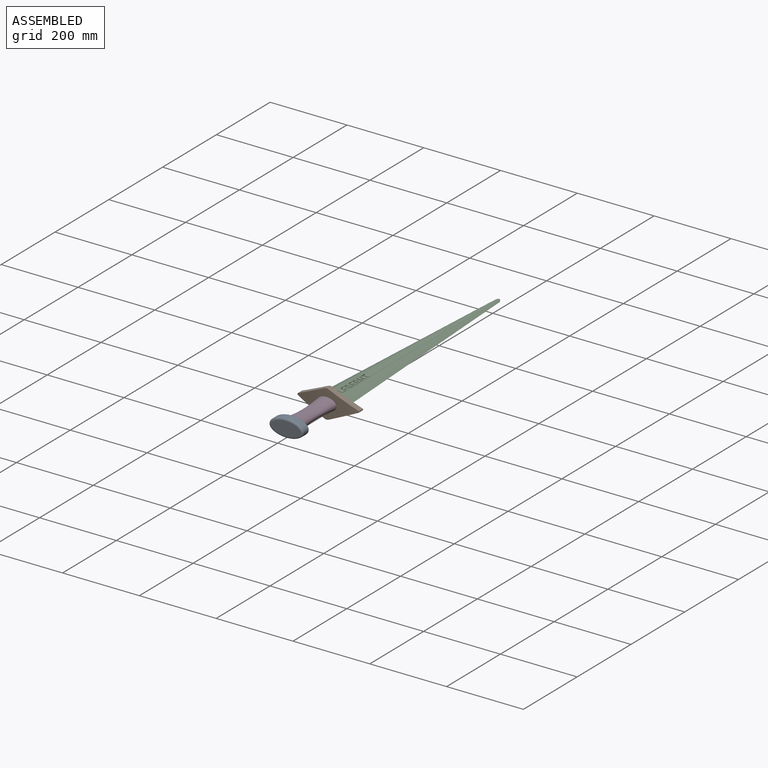
[diagram: assembled view]
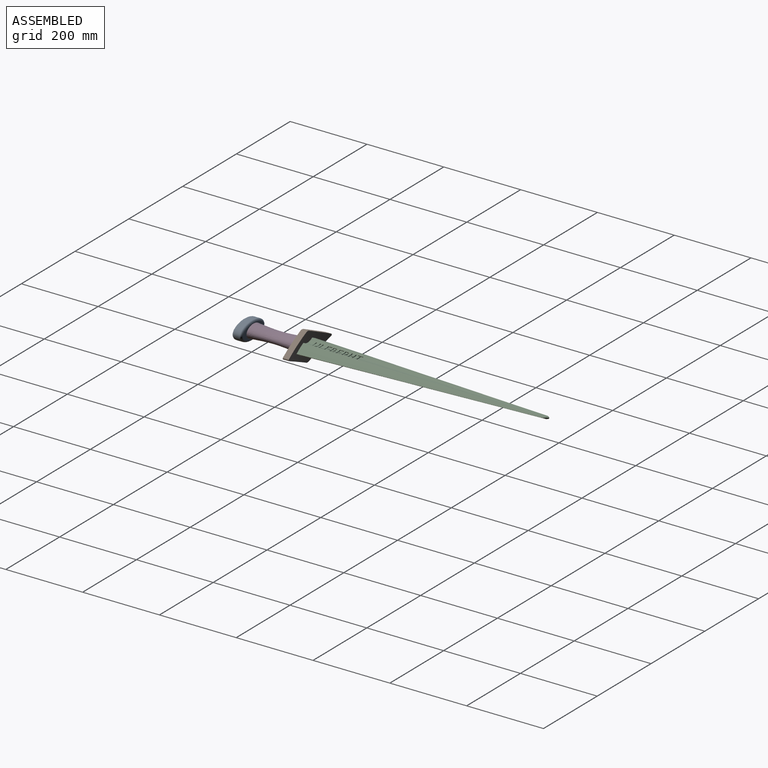
[diagram: assembled view, second angle]
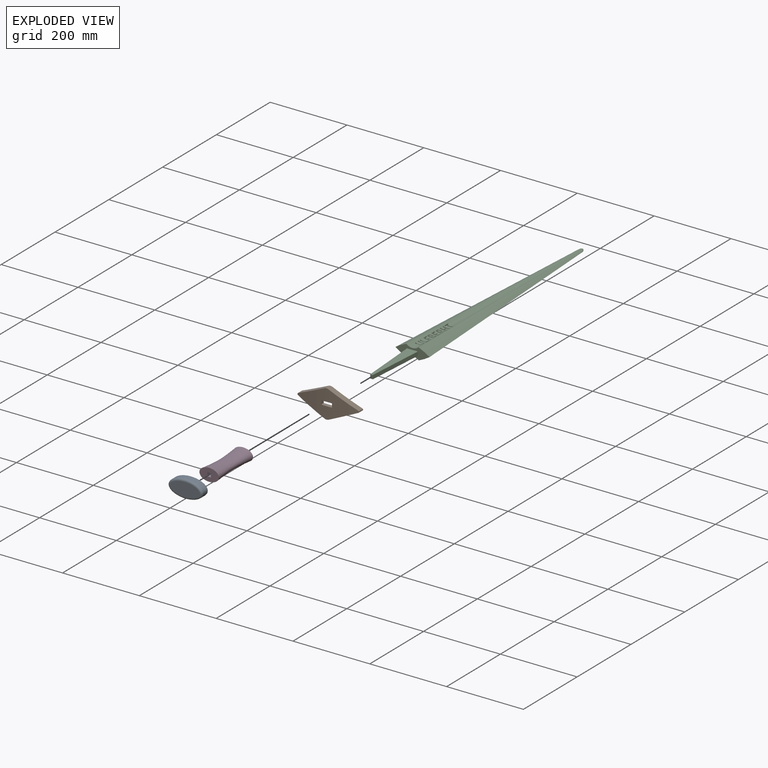
[diagram: exploded view]
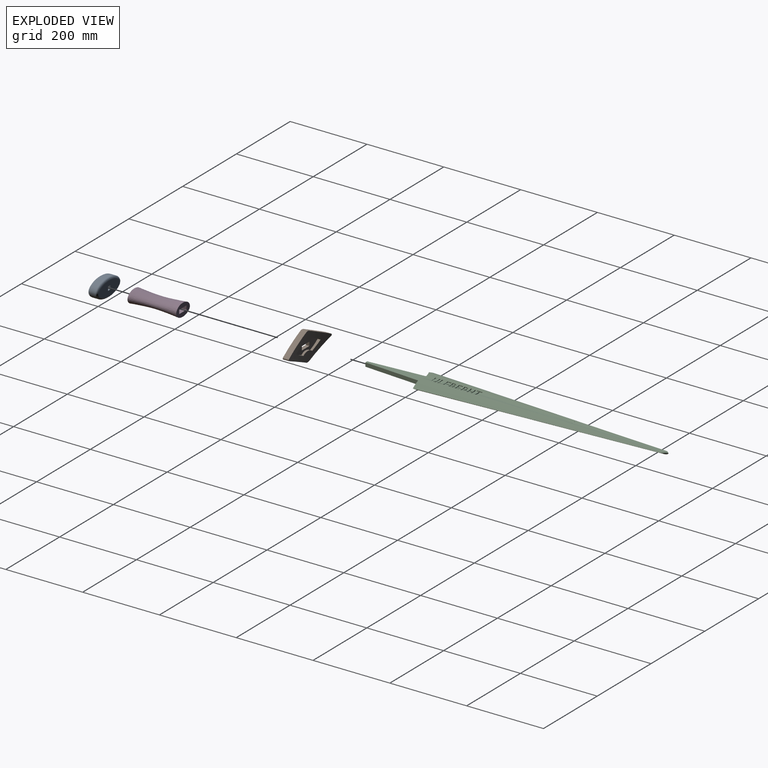
[diagram: exploded view, second angle]
ASSEMBLY  parts=4 mates=3
PART A: 10 faces, bbox 88.9x45.7x25.4 mm
  f0: plane 78.74x35.57mm, normal (0,0,1), area 2076.8mm2, adj f3,f5,f6,f7,f9
  f1: extruded ~88.49x45.51mm, area 3306.1mm2, adj f8,f9
  f2: plane 78.74x35.57mm, normal (0,0,-1), area 2170mm2, adj f8
  f3: plane 15.93x10.36mm, normal (1,0,0.07), area 165.4mm2, adj f0,f4,f6,f7
  f4: plane 10.36x6.76mm, normal (0,0,1), area 70.1mm2, adj f3,f5,f6,f7
  f5: plane 15.93x10.36mm, normal (-1,0,0.07), area 165.4mm2, adj f0,f4,f6,f7
  f6: plane 15.93x9mm, normal (0,-1,0), area 125.6mm2, adj f0,f3,f4,f5
  f7: plane 15.93x9mm, normal (0,1,0), area 125.6mm2, adj f0,f3,f4,f5
  f8: bspline ~88.9x45.73mm, area 1638.3mm2, adj f1,f2
  f9: bspline ~88.9x45.73mm, area 1638.3mm2, adj f0,f1
PART B: 21 faces, bbox 160.1x73.7x21.8 mm
  f0: plane 89.59x31.4mm, normal (0,0,1), area 1432.4mm2, adj f5,f6,f7,f11,f12,f13,f15,f16
  f1: cylinder r=508mm len=160.14mm, axis (0,-1,0), area 6092.1mm2, adj f2,f3,f4,f8,f9,f10,f15,f16
  f2: plane 73.24x33.27mm, normal (-0.41,-0.91,0), area 1231.4mm2, adj f1,f3,f14,f19
  f3: cylinder r=12.7mm len=15.27mm, axis (0,0,-1), area 165mm2, adj f1,f2,f4,f14
  f4: plane 73.24x33.27mm, normal (0.41,-0.91,0), area 1231.4mm2, adj f1,f3,f14,f20
  f5: cylinder r=157.48mm len=28.89mm, axis (0,0,1), area 214.6mm2, adj f0,f6,f12,f14
  f6: cylinder r=25.4mm len=31.82mm, axis (0,0,1), area 192.6mm2, adj f0,f5,f7,f14
  f7: cylinder r=157.48mm len=28.89mm, axis (0,0,1), area 214.6mm2, adj f0,f6,f13,f14
  f8: plane 73.24x33.27mm, normal (0.41,0.91,0), area 1231.4mm2, adj f1,f9,f14,f20
  f9: cylinder r=12.7mm len=15.27mm, axis (0,0,-1), area 165mm2, adj f1,f8,f10,f14
  f10: plane 73.24x33.27mm, normal (-0.41,0.91,0), area 1231.4mm2, adj f1,f9,f14,f19
  f11: cylinder r=25.4mm len=32.14mm, axis (0,0,1), area 194.9mm2, adj f0,f12,f13,f14
  f12: cylinder r=157.48mm len=28.81mm, axis (0,0,1), area 215.3mm2, adj f0,f5,f11,f14
  f13: cylinder r=157.48mm len=28.65mm, axis (0,0,1), area 213.1mm2, adj f0,f7,f11,f14
  f14: cylinder r=492.76mm len=160.14mm, axis (0,-1,0), area 4659.1mm2, adj f2,f3,f4,f5,f6,f7,f8,f9
  f15: plane 28.25x9.73mm, normal (0,-1,0), area 273mm2, adj f0,f1,f16,f18
  f16: plane 10.26x9.54mm, normal (1,0,0), area 97.8mm2, adj f0,f1,f15,f17
  f17: plane 28.25x9.73mm, normal (0,1,0), area 273mm2, adj f0,f1,f16,f18
  f18: plane 10.26x9.54mm, normal (-1,0,0), area 97.8mm2, adj f0,f1,f15,f17
  f19: cylinder r=2.69mm len=15.69mm, axis (0,0,-1), area 94.9mm2, adj f1,f2,f10,f14
  f20: cylinder r=2.69mm len=15.69mm, axis (0,0,-1), area 94.9mm2, adj f1,f4,f8,f14
PART C: 347 faces, bbox 89x787.1x30.6 mm
  f0: bspline ~632.51x32.38mm, area 12630mm2, adj f3,f4,f5,f179,f180,f181,f182,f183
  f1: bspline ~632.51x32.38mm, area 12631.5mm2, adj f2,f4,f6,f12,f13,f14,f15,f16
  f2: bspline ~635x40.64mm, area 11366.4mm2, adj f1,f3,f4,f346
  f3: bspline ~635x40.64mm, area 11366.4mm2, adj f0,f2,f4,f346
  f4: plane 88.9x30.54mm, normal (0,-1,0), area 1378.4mm2, adj f0,f1,f2,f3,f5,f6,f7,f8
  f5: bspline ~635x40.64mm, area 11366.4mm2, adj f0,f4,f6,f346
  f6: bspline ~635x40.64mm, area 11366.4mm2, adj f1,f4,f5,f346
  f7: plane 152.02x10.69mm, normal (1,-0.07,0), area 1548.4mm2, adj f4,f9,f10,f11
  f8: plane 152.02x10.69mm, normal (-1,-0.07,0), area 1548.4mm2, adj f4,f9,f10,f11
  f9: plane 10.16x6.76mm, normal (0,-1,0), area 68.7mm2, adj f7,f8,f10,f11
  f10: plane 152.02x28.15mm, normal (0,0,1), area 2653.5mm2, adj f4,f7,f8,f9
  f11: plane 152.02x28.15mm, normal (0,0,-1), area 2653.5mm2, adj f4,f7,f8,f9
  f12: plane 3.34x3.11mm, normal (-1,0,0), area 10mm2, adj f1,f13,f36,f37
  f13: plane 7.03x4.17mm, normal (0.5,-0.87,0.02), area 18.1mm2, adj f1,f12,f14,f37
  f14: extruded ~2.43x1.99mm, area 4.9mm2, adj f1,f13,f15,f37
  f15: extruded ~3.26x1.8mm, area 5.7mm2, adj f1,f14,f16,f37
  f16: extruded ~2.29x2.24mm, area 4.8mm2, adj f1,f15,f17,f37
  f17: extruded ~2.76x1.74mm, area 5.6mm2, adj f1,f16,f18,f37
  f18: extruded ~3.15x2.04mm, area 6.6mm2, adj f1,f17,f19,f37
  f19: extruded ~3.27x2.29mm, area 7.2mm2, adj f1,f18,f20,f37
  f20: plane 3.24x1.29mm, normal (1,0,0), area 3.9mm2, adj f1,f19,f21,f37
  f21: plane 3.22x2.18mm, normal (0,1,-0.02), area 6.1mm2, adj f1,f20,f22,f37
  f22: plane 2.46x1.22mm, normal (-1,0,0), area 2.9mm2, adj f1,f21,f23,f37
  f23: extruded ~2.49x1.83mm, area 4.4mm2, adj f1,f22,f24,f37
  f24: extruded ~2.39x1.09mm, area 3.1mm2, adj f1,f23,f25,f37
  f25: extruded ~2.16x1.08mm, area 2.4mm2, adj f1,f24,f26,f37
  f26: extruded ~1.92x1mm, area 1.9mm2, adj f1,f25,f27,f37
  f27: extruded ~1.81x1.76mm, area 3mm2, adj f1,f26,f28,f37
  f28: extruded ~1.57x1.14mm, area 2.1mm2, adj f1,f27,f29,f37
  f29: extruded ~1.52x0.99mm, area 1.7mm2, adj f1,f28,f30,f37
  f30: extruded ~1.51x1.08mm, area 1.6mm2, adj f1,f29,f31,f37
  f31: plane 1.66x1.5mm, normal (1,0,0), area 2.4mm2, adj f1,f30,f32,f37
  f32: plane 2.11x1.59mm, normal (0,1,-0.02), area 3.2mm2, adj f1,f31,f33,f37
  f33: plane 1.62x1.38mm, normal (-1,0,0), area 2.1mm2, adj f1,f32,f34,f37
  f34: extruded ~1.61x0.28mm, area 0.4mm2, adj f1,f33,f35,f37
  f35: extruded ~1.61x0.19mm, area 0.3mm2, adj f1,f34,f36,f37
  f36: plane 6.46x3.46mm, normal (-0.46,0.89,-0.02), area 16.4mm2, adj f1,f12,f35,f37
  f37: plane 17.66x8.12mm, normal (0,0.02,1), area 59.9mm2, adj f12,f13,f14,f15,f16,f17,f18,f19
  f38: plane 17.74x3.58mm, normal (0,-1,0.02), area 40.4mm2, adj f1,f39,f45,f46
  f39: plane 3.52x2.95mm, normal (1,0,0), area 10mm2, adj f1,f38,f40,f46
  f40: plane 7.76x3.49mm, normal (0,1,-0.02), area 18.1mm2, adj f1,f39,f41,f46
  f41: plane 6.7x1.77mm, normal (1,0,0), area 11.1mm2, adj f1,f40,f42,f46
  f42: plane 1.97x1.64mm, normal (0,1,-0.02), area 3.2mm2, adj f1,f41,f43,f46
  f43: plane 6.7x1.76mm, normal (-1,0,0), area 11mm2, adj f1,f42,f44,f46
  f44: plane 7.98x3.49mm, normal (0,1,-0.02), area 18.5mm2, adj f1,f43,f45,f46
  f45: plane 3.53x2.95mm, normal (-1,0,0), area 10mm2, adj f1,f38,f44,f46
  f46: plane 17.66x9.54mm, normal (0,0.02,1), area 63.9mm2, adj f38,f39,f40,f41,f42,f43,f44,f45
  f47: plane 3.41x2.99mm, normal (1,0,0), area 9.8mm2, adj f1,f48,f50,f51
  f48: plane 17.74x3.43mm, normal (0,1,-0.02), area 38.1mm2, adj f1,f47,f49,f51
  f49: plane 3.41x2.99mm, normal (-1,0,0), area 9.8mm2, adj f1,f48,f50,f51
  f50: plane 17.74x3.46mm, normal (0,-1,0.02), area 38.6mm2, adj f1,f47,f49,f51
  f51: plane 17.66x2.92mm, normal (0,0.02,1), area 51.6mm2, adj f47,f48,f49,f50
  f52: plane 3.68x1.96mm, normal (0,-1,0.02), area 6.5mm2, adj f1,f53,f59,f60
  f53: plane 13.52x3.82mm, normal (1,0,0), area 48.5mm2, adj f1,f52,f54,f60
  f54: plane 3.54x1.96mm, normal (0,1,-0.02), area 6.2mm2, adj f1,f53,f55,f60
  f55: plane 5.33x2.91mm, normal (-1,0,0), area 14.9mm2, adj f1,f54,f56,f60
  f56: plane 15.76x3.66mm, normal (0,1,-0.02), area 35.6mm2, adj f1,f55,f57,f60
  f57: plane 3.66x2.97mm, normal (-1,0,0), area 10.5mm2, adj f1,f56,f58,f60
  f58: plane 15.76x3.69mm, normal (0,-1,0.02), area 36mm2, adj f1,f57,f59,f60
  f59: plane 5.33x2.99mm, normal (-1,0,0), area 15.4mm2, adj f1,f52,f58,f60
  f60: plane 17.66x13.44mm, normal (0,0.02,1), area 71.9mm2, adj f52,f53,f54,f55,f56,f57,f58,f59
  f61: plane 6.42x1.48mm, normal (-1,0,0), area 8.8mm2, adj f1,f62,f64,f65
  f62: plane 1.97x1.41mm, normal (0,-1,0.02), area 2.7mm2, adj f1,f61,f63,f65
  f63: plane 6.42x1.48mm, normal (1,0,0), area 8.8mm2, adj f1,f62,f64,f65
  f64: plane 1.97x1.35mm, normal (0,1,-0.02), area 2.6mm2, adj f1,f61,f63,f65
  f65: plane 6.39x1.97mm, normal (0,0.02,1), area 12.6mm2, adj f61,f62,f63,f64
  f66: plane 7.19x2.44mm, normal (1,0,0), area 16.6mm2, adj f1,f67,f69,f70
  f67: plane 3.06x2.18mm, normal (0,1,-0.02), area 5.8mm2, adj f1,f66,f68,f70
  f68: plane 7.2x3.2mm, normal (-1,0,0), area 22.1mm2, adj f1,f67,f69,f70
  f69: plane 3.13x2.18mm, normal (0,-1,0.02), area 5.9mm2, adj f1,f66,f68,f70
  f70: plane 7.14x2.18mm, normal (0,0.02,1), area 15.6mm2, adj f66,f67,f68,f69
  f71: plane 3.13x2.18mm, normal (0,-1,0.02), area 5.9mm2, adj f1,f72,f74,f75
  f72: plane 7.2x3.2mm, normal (1,0,0), area 22.1mm2, adj f1,f71,f73,f75
  f73: plane 3.05x2.18mm, normal (0,1,-0.02), area 5.8mm2, adj f1,f72,f74,f75
  f74: plane 7.19x2.44mm, normal (-1,0,0), area 16.6mm2, adj f1,f71,f73,f75
  f75: plane 7.14x2.18mm, normal (0,0.02,1), area 15.5mm2, adj f71,f72,f73,f74
  f76: plane 3.23x2.94mm, normal (1,0,0), area 9.2mm2, adj f1,f77,f79,f80
  f77: plane 17.73x3.25mm, normal (0,1,-0.02), area 35.3mm2, adj f1,f76,f78,f80
  f78: plane 3.23x2.94mm, normal (-1,0,0), area 9.2mm2, adj f1,f77,f79,f80
  f79: plane 17.73x3.28mm, normal (0,-1,0.02), area 35.8mm2, adj f1,f76,f78,f80
  f80: plane 17.66x2.87mm, normal (0,0.02,1), area 50.8mm2, adj f76,f77,f78,f79
  f81: plane 8.77x2.51mm, normal (0,-1,0.02), area 12.1mm2, adj f1,f82,f92,f93
  f82: plane 2.95x2.51mm, normal (1,0,0), area 7.1mm2, adj f1,f81,f83,f93
  f83: plane 8.48x2.47mm, normal (0,1,-0.02), area 11.7mm2, adj f1,f82,f84,f93
  f84: extruded ~3.15x0.98mm, area 2.8mm2, adj f1,f83,f85,f93
  f85: extruded ~2.1x1.31mm, area 2.5mm2, adj f1,f84,f86,f93
  f86: extruded ~1.58x1.21mm, area 2.3mm2, adj f1,f85,f87,f93
  f87: extruded ~1.71x1.46mm, area 2.5mm2, adj f1,f86,f88,f93
  f88: plane 2.46x2.37mm, normal (0,1,-0.02), area 4.9mm2, adj f1,f87,f89,f93
  f89: extruded ~2.69x2.52mm, area 6.5mm2, adj f1,f88,f90,f93
  f90: extruded ~2.27x2.05mm, area 5.3mm2, adj f1,f89,f91,f93
  f91: extruded ~2.79x1.73mm, area 4.3mm2, adj f1,f90,f92,f93
  f92: extruded ~3.79x1.13mm, area 3.7mm2, adj f1,f81,f91,f93
  f93: plane 17.78x6.37mm, normal (0,0.02,1), area 53mm2, adj f81,f82,f83,f84,f85,f86,f87,f88
  f94: plane 15.53x2.61mm, normal (0,-1,0.02), area 20.9mm2, adj f1,f95,f99,f100
  f95: plane 2.98x2.59mm, normal (1,0,0), area 7.4mm2, adj f1,f94,f96,f100
  f96: plane 17.73x2.6mm, normal (0,1,-0.02), area 25.2mm2, adj f1,f95,f97,f100
  f97: plane 11.1x2.76mm, normal (-1,0,0), area 28.6mm2, adj f1,f96,f98,f100
  f98: plane 2.65x2.18mm, normal (0,-1,0.02), area 4.9mm2, adj f1,f97,f99,f100
  f99: plane 8.16x2mm, normal (1,0,0), area 15.2mm2, adj f1,f94,f98,f100
  f100: plane 17.66x11.05mm, normal (0,0.02,1), area 69.4mm2, adj f94,f95,f96,f97,f98,f99
  f101: plane 2.98x2.74mm, normal (1,0,0), area 7.9mm2, adj f1,f102,f104,f105
  f102: plane 17.73x2.75mm, normal (0,1,-0.02), area 27.6mm2, adj f1,f101,f103,f105
  f103: plane 2.98x2.74mm, normal (-1,0,0), area 7.9mm2, adj f1,f102,f104,f105
  f104: plane 17.73x2.78mm, normal (0,-1,0.02), area 28.1mm2, adj f1,f101,f103,f105
  f105: plane 17.66x2.92mm, normal (0,0.02,1), area 51.6mm2, adj f101,f102,f103,f104
  f106: plane 6.42x1.2mm, normal (-1,0,0), area 7mm2, adj f1,f107,f109,f110
  f107: plane 1.97x1.13mm, normal (0,-1,0.02), area 2.2mm2, adj f1,f106,f108,f110
  f108: plane 6.42x1.21mm, normal (1,0,0), area 7.1mm2, adj f1,f107,f109,f110
  f109: plane 1.97x1.07mm, normal (0,1,-0.02), area 2.1mm2, adj f1,f106,f108,f110
  f110: plane 6.39x1.97mm, normal (0,0.02,1), area 12.6mm2, adj f106,f107,f108,f109
  f111: plane 3.07x2.98mm, normal (1,0,0), area 8.8mm2, adj f1,f112,f114,f115
  f112: plane 17.73x3.09mm, normal (0,1,-0.02), area 32.8mm2, adj f1,f111,f113,f115
  f113: plane 3.07x2.98mm, normal (-1,0,0), area 8.8mm2, adj f1,f112,f114,f115
  f114: plane 17.73x3.12mm, normal (0,-1,0.02), area 33.3mm2, adj f1,f111,f113,f115
  f115: plane 17.66x2.92mm, normal (0,0.02,1), area 51.6mm2, adj f111,f112,f113,f114
  f116: plane 2.93x2.89mm, normal (1,0,0), area 8.2mm2, adj f1,f117,f119,f120
  f117: plane 17.73x2.91mm, normal (0,1,-0.02), area 30mm2, adj f1,f116,f118,f120
  f118: plane 2.93x2.9mm, normal (-1,0,0), area 8.2mm2, adj f1,f117,f119,f120
  f119: plane 17.73x2.94mm, normal (0,-1,0.02), area 30.5mm2, adj f1,f116,f118,f120
  f120: plane 17.66x2.87mm, normal (0,0.02,1), area 50.8mm2, adj f116,f117,f118,f119
  f121: extruded ~1.25x1.2mm, area 1.5mm2, adj f1,f122,f159,f160
  f122: extruded ~1.26x0.92mm, area 1.2mm2, adj f1,f121,f123,f160
  f123: extruded ~1.31x0.85mm, area 1.4mm2, adj f1,f122,f124,f160
  f124: extruded ~1.41x1.07mm, area 1.7mm2, adj f1,f123,f125,f160
  f125: extruded ~1.59x1.35mm, area 2.1mm2, adj f1,f124,f126,f160
  f126: extruded ~2.19x2.08mm, area 4.1mm2, adj f1,f125,f127,f160
  f127: extruded ~2.55x1.5mm, area 4.6mm2, adj f1,f126,f128,f160
  f128: extruded ~2.85x1.93mm, area 5.5mm2, adj f1,f127,f129,f160
  f129: extruded ~2.93x2.24mm, area 6.3mm2, adj f1,f128,f130,f160
  f130: plane 2.9x1.28mm, normal (1,0,0), area 3.5mm2, adj f1,f129,f131,f160
  f131: plane 2.88x2.18mm, normal (0,1,-0.02), area 5.4mm2, adj f1,f130,f132,f160
  f132: plane 2.14x0.98mm, normal (-1,0,0), area 2mm2, adj f1,f131,f133,f160
  f133: extruded ~2.17x1.82mm, area 3.8mm2, adj f1,f132,f134,f160
  f134: extruded ~2.11x1.07mm, area 2.4mm2, adj f1,f133,f135,f160
  f135: extruded ~1.94x0.85mm, area 1.8mm2, adj f1,f134,f136,f160
  f136: extruded ~1.74x0.9mm, area 1.5mm2, adj f1,f135,f137,f160
  f137: extruded ~1.65x1.57mm, area 2.5mm2, adj f1,f136,f138,f160
  f138: extruded ~1.35x0.81mm, area 1.5mm2, adj f1,f137,f139,f160
  f139: extruded ~1.28x1.06mm, area 1.3mm2, adj f1,f138,f140,f160
  f140: extruded ~1.26x1.1mm, area 1.3mm2, adj f1,f139,f141,f160
  f141: plane 1.24x1.18mm, normal (1,0,0), area 1.4mm2, adj f1,f140,f142,f160
  f142: plane 1.94x1.21mm, normal (0,1,-0.02), area 2.3mm2, adj f1,f141,f143,f160
  f143: plane 2.42x1.24mm, normal (-1,0,0), area 2.9mm2, adj f1,f142,f144,f160
  f144: extruded ~2.21x1.32mm, area 3mm2, adj f1,f143,f145,f160
  f145: extruded ~2.18x1.54mm, area 3.3mm2, adj f1,f144,f146,f160
  f146: extruded ~2.18x1.98mm, area 4.1mm2, adj f1,f145,f147,f160
  f147: extruded ~2.22x2.03mm, area 4.6mm2, adj f1,f146,f148,f160
  f148: plane 2.66x2.2mm, normal (1,0,0), area 5.7mm2, adj f1,f147,f149,f160
  f149: plane 2.88x2.11mm, normal (0,1,-0.02), area 5.3mm2, adj f1,f148,f150,f160
  f150: plane 2.94x2.84mm, normal (-1,0,0), area 8mm2, adj f1,f149,f151,f160
  f151: extruded ~2.92x0.66mm, area 1.7mm2, adj f1,f150,f152,f160
  f152: extruded ~2.92x1.1mm, area 3mm2, adj f1,f151,f153,f160
  f153: extruded ~2.86x1.28mm, area 3.6mm2, adj f1,f152,f154,f160
  f154: extruded ~2.68x1.23mm, area 3.7mm2, adj f1,f153,f155,f160
  f155: extruded ~2.39x1.43mm, area 3.7mm2, adj f1,f154,f156,f160
  f156: extruded ~2.06x1.98mm, area 3.7mm2, adj f1,f155,f157,f160
  f157: extruded ~1.74x1.56mm, area 2.6mm2, adj f1,f156,f158,f160
  f158: extruded ~1.35x1.28mm, area 2mm2, adj f1,f157,f159,f160
  f159: extruded ~1.28x1.19mm, area 1.8mm2, adj f1,f121,f158,f160
  f160: plane 17.66x8.08mm, normal (0,0.02,1), area 67.7mm2, adj f121,f122,f123,f124,f125,f126,f127,f128
  f161: plane 2.8x2.18mm, normal (0,-1,0.02), area 5.2mm2, adj f1,f162,f164,f165
  f162: plane 7.2x2.87mm, normal (1,0,0), area 19.7mm2, adj f1,f161,f163,f165
  f163: plane 2.72x2.18mm, normal (0,1,-0.02), area 5.1mm2, adj f1,f162,f164,f165
  f164: plane 7.18x2.13mm, normal (-1,0,0), area 14.4mm2, adj f1,f161,f163,f165
  f165: plane 7.14x2.18mm, normal (0,0.02,1), area 15.5mm2, adj f161,f162,f163,f164
  f166: extruded ~3.13x0.91mm, area 2.6mm2, adj f1,f167,f177,f178
  f167: plane 8.48x2.39mm, normal (0,-1,0.02), area 11mm2, adj f1,f166,f168,f178
  f168: plane 2.97x2.4mm, normal (1,0,0), area 6.9mm2, adj f1,f167,f169,f178
  f169: plane 8.77x2.36mm, normal (0,1,-0.02), area 11mm2, adj f1,f168,f170,f178
  f170: extruded ~3.79x1.01mm, area 3.3mm2, adj f1,f169,f171,f178
  f171: extruded ~2.79x1.62mm, area 4mm2, adj f1,f170,f172,f178
  f172: extruded ~2.2x2.05mm, area 5mm2, adj f1,f171,f173,f178
  f173: extruded ~2.7x2.51mm, area 6.4mm2, adj f1,f172,f174,f178
  f174: plane 2.45x2.37mm, normal (0,-1,0.02), area 4.8mm2, adj f1,f173,f175,f178
  f175: extruded ~1.7x1.46mm, area 2.4mm2, adj f1,f174,f176,f178
  f176: extruded ~1.55x1.23mm, area 2.3mm2, adj f1,f175,f177,f178
  f177: extruded ~2.11x1.25mm, area 2.4mm2, adj f1,f166,f176,f178
  f178: plane 17.78x6.37mm, normal (0,0.02,1), area 53.3mm2, adj f166,f167,f168,f169,f170,f171,f172,f173
  f179: plane 3.69x3.12mm, normal (1,0,0), area 11.1mm2, adj f0,f180,f203,f204
  f180: plane 7.04x4.19mm, normal (-0.5,-0.87,-0.02), area 20.6mm2, adj f0,f179,f181,f204
  f181: extruded ~2.43x1.99mm, area 5.8mm2, adj f0,f180,f182,f204
  f182: extruded ~3.26x2.1mm, area 6.7mm2, adj f0,f181,f183,f204
  f183: extruded ~2.56x2.29mm, area 5.5mm2, adj f0,f182,f184,f204
  f184: extruded ~3.09x1.74mm, area 6.3mm2, adj f0,f183,f185,f204
  f185: extruded ~3.49x2.05mm, area 7.4mm2, adj f0,f184,f186,f204
  f186: extruded ~3.62x2.3mm, area 8mm2, adj f0,f185,f187,f204
  f187: plane 3.59x1.3mm, normal (-1,0,0), area 4.4mm2, adj f0,f186,f188,f204
  f188: plane 3.57x2.18mm, normal (0,1,0.02), area 6.8mm2, adj f0,f187,f189,f204
  f189: plane 2.79x1.23mm, normal (1,0,0), area 3.2mm2, adj f0,f188,f190,f204
  f190: extruded ~2.81x1.83mm, area 5mm2, adj f0,f189,f191,f204
  f191: extruded ~2.71x1.1mm, area 3.5mm2, adj f0,f190,f192,f204
  f192: extruded ~2.47x1.08mm, area 2.8mm2, adj f0,f191,f193,f204
  f193: extruded ~2.23x1mm, area 2.2mm2, adj f0,f192,f194,f204
  f194: extruded ~2.06x1.81mm, area 3.6mm2, adj f0,f193,f195,f204
  f195: extruded ~1.86x1.14mm, area 2.5mm2, adj f0,f194,f196,f204
  f196: extruded ~1.81x1mm, area 2mm2, adj f0,f195,f197,f204
  f197: extruded ~1.8x1.09mm, area 1.9mm2, adj f0,f196,f198,f204
  f198: plane 1.79x1.67mm, normal (-1,0,0), area 2.9mm2, adj f0,f197,f199,f204
  f199: plane 2.11x1.89mm, normal (0,1,0.02), area 3.8mm2, adj f0,f198,f200,f204
  f200: plane 1.92x1.38mm, normal (1,0,0), area 2.5mm2, adj f0,f199,f201,f204
  f201: extruded ~1.91x0.29mm, area 0.5mm2, adj f0,f200,f202,f204
  f202: extruded ~1.91x0.2mm, area 0.3mm2, adj f0,f201,f203,f204
  f203: plane 6.47x3.69mm, normal (0.46,0.89,0.02), area 18.7mm2, adj f0,f179,f202,f204
  f204: plane 17.66x8.12mm, normal (0,0.02,-1), area 59.9mm2, adj f179,f180,f181,f182,f183,f184,f185,f186
  f205: plane 17.75x3.94mm, normal (0,-1,-0.02), area 45.9mm2, adj f0,f206,f212,f213
  f206: plane 3.88x2.95mm, normal (-1,0,0), area 11mm2, adj f0,f205,f207,f213
  f207: plane 7.77x3.85mm, normal (0,1,0.02), area 20.5mm2, adj f0,f206,f208,f213
  f208: plane 6.7x2.07mm, normal (-1,0,0), area 13mm2, adj f0,f207,f209,f213
  f209: plane 1.97x1.93mm, normal (0,1,0.02), area 3.8mm2, adj f0,f208,f210,f213
  f210: plane 6.7x2.06mm, normal (1,0,0), area 13mm2, adj f0,f209,f211,f213
  f211: plane 7.99x3.85mm, normal (0,1,0.02), area 21mm2, adj f0,f210,f212,f213
  f212: plane 3.88x2.95mm, normal (1,0,0), area 11mm2, adj f0,f205,f211,f213
  f213: plane 17.66x9.54mm, normal (0,0.02,-1), area 63.9mm2, adj f205,f206,f207,f208,f209,f210,f211,f212
  f214: plane 3.76x3mm, normal (-1,0,0), area 10.9mm2, adj f0,f215,f217,f218
  f215: plane 17.74x3.79mm, normal (0,1,0.02), area 43.5mm2, adj f0,f214,f216,f218
  f216: plane 3.76x3mm, normal (1,0,0), area 10.9mm2, adj f0,f215,f217,f218
  f217: plane 17.74x3.82mm, normal (0,-1,-0.02), area 44mm2, adj f0,f214,f216,f218
  f218: plane 17.66x2.92mm, normal (0,0.02,-1), area 51.6mm2, adj f214,f215,f216,f217
  f219: plane 4.04x1.96mm, normal (0,-1,-0.02), area 7.1mm2, adj f0,f220,f226,f227
  f220: plane 13.52x4.17mm, normal (-1,0,0), area 53.3mm2, adj f0,f219,f221,f227
  f221: plane 3.89x1.96mm, normal (0,1,0.02), area 6.8mm2, adj f0,f220,f222,f227
  f222: plane 5.34x3.24mm, normal (1,0,0), area 16.6mm2, adj f0,f221,f223,f227
  f223: plane 15.76x4.01mm, normal (0,1,0.02), area 40.4mm2, adj f0,f222,f224,f227
  f224: plane 4.01x2.98mm, normal (1,0,0), area 11.5mm2, adj f0,f223,f225,f227
  f225: plane 15.76x4.05mm, normal (0,-1,-0.02), area 40.9mm2, adj f0,f224,f226,f227
  f226: plane 5.34x3.32mm, normal (1,0,0), area 17.1mm2, adj f0,f219,f225,f227
  f227: plane 17.66x13.44mm, normal (0,0.02,-1), area 71.9mm2, adj f219,f220,f221,f222,f223,f224,f225,f226
  f228: plane 6.43x1.77mm, normal (1,0,0), area 10.6mm2, adj f0,f229,f231,f232
  f229: plane 1.97x1.7mm, normal (0,-1,-0.02), area 3.3mm2, adj f0,f228,f230,f232
  f230: plane 6.43x1.78mm, normal (-1,0,0), area 10.7mm2, adj f0,f229,f231,f232
  f231: plane 1.97x1.64mm, normal (0,1,0.02), area 3.2mm2, adj f0,f228,f230,f232
  f232: plane 6.39x1.97mm, normal (0,0.02,-1), area 12.6mm2, adj f228,f229,f230,f231
  f233: plane 7.19x2.76mm, normal (-1,0,0), area 18.9mm2, adj f0,f234,f236,f237
  f234: plane 3.4x2.18mm, normal (0,1,0.02), area 6.5mm2, adj f0,f233,f235,f237
  f235: plane 7.21x3.55mm, normal (1,0,0), area 24.6mm2, adj f0,f234,f236,f237
  f236: plane 3.48x2.18mm, normal (0,-1,-0.02), area 6.7mm2, adj f0,f233,f235,f237
  f237: plane 7.14x2.18mm, normal (0,0.02,-1), area 15.6mm2, adj f233,f234,f235,f236
  f238: plane 3.48x2.18mm, normal (0,-1,-0.02), area 6.7mm2, adj f0,f239,f241,f242
  f239: plane 7.21x3.55mm, normal (-1,0,0), area 24.6mm2, adj f0,f238,f240,f242
  f240: plane 3.4x2.18mm, normal (0,1,0.02), area 6.5mm2, adj f0,f239,f241,f242
  f241: plane 7.19x2.76mm, normal (1,0,0), area 18.9mm2, adj f0,f238,f240,f242
  f242: plane 7.14x2.18mm, normal (0,0.02,-1), area 15.5mm2, adj f238,f239,f240,f241
  f243: plane 3.58x2.95mm, normal (-1,0,0), area 10.2mm2, adj f0,f244,f246,f247
  f244: plane 17.74x3.61mm, normal (0,1,0.02), area 40.8mm2, adj f0,f243,f245,f247
  f245: plane 3.59x2.95mm, normal (1,0,0), area 10.2mm2, adj f0,f244,f246,f247
  f246: plane 17.74x3.64mm, normal (0,-1,-0.02), area 41.3mm2, adj f0,f243,f245,f247
  f247: plane 17.66x2.87mm, normal (0,0.02,-1), area 50.8mm2, adj f243,f244,f245,f246
  f248: plane 8.77x2.85mm, normal (0,-1,-0.02), area 14.8mm2, adj f0,f249,f259,f260
  f249: plane 2.96x2.85mm, normal (-1,0,0), area 8.1mm2, adj f0,f248,f250,f260
  f250: plane 8.48x2.82mm, normal (0,1,0.02), area 14.3mm2, adj f0,f249,f251,f260
  f251: extruded ~3.15x1.28mm, area 3.8mm2, adj f0,f250,f252,f260
  f252: extruded ~2.1x1.62mm, area 3.2mm2, adj f0,f251,f253,f260
  f253: extruded ~1.9x1.21mm, area 2.9mm2, adj f0,f252,f254,f260
  f254: extruded ~2.03x1.47mm, area 2.9mm2, adj f0,f253,f255,f260
  f255: plane 2.81x2.37mm, normal (0,1,0.02), area 5.6mm2, adj f0,f254,f256,f260
  f256: extruded ~2.86x2.7mm, area 7.4mm2, adj f0,f255,f257,f260
  f257: extruded ~2.61x2.05mm, area 6.1mm2, adj f0,f256,f258,f260
  f258: extruded ~2.79x2.05mm, area 5.3mm2, adj f0,f257,f259,f260
  f259: extruded ~3.79x1.43mm, area 4.9mm2, adj f0,f248,f258,f260
  f260: plane 17.78x6.37mm, normal (0,0.02,-1), area 53mm2, adj f248,f249,f250,f251,f252,f253,f254,f255
  f261: plane 15.53x2.96mm, normal (0,-1,-0.02), area 25.6mm2, adj f0,f262,f266,f267
  f262: plane 2.99x2.93mm, normal (-1,0,0), area 8.4mm2, adj f0,f261,f263,f267
  f263: plane 17.73x2.95mm, normal (0,1,0.02), area 30.6mm2, adj f0,f262,f264,f267
  f264: plane 11.11x3.11mm, normal (1,0,0), area 32.4mm2, adj f0,f263,f265,f267
  f265: plane 3x2.18mm, normal (0,-1,-0.02), area 5.7mm2, adj f0,f264,f266,f267
  f266: plane 8.17x2.32mm, normal (-1,0,0), area 17.8mm2, adj f0,f261,f265,f267
  f267: plane 17.66x11.05mm, normal (0,0.02,-1), area 69.4mm2, adj f261,f262,f263,f264,f265,f266
  f268: plane 3.09x2.98mm, normal (-1,0,0), area 8.9mm2, adj f0,f269,f271,f272
  f269: plane 17.73x3.1mm, normal (0,1,0.02), area 33mm2, adj f0,f268,f270,f272
  f270: plane 3.09x2.98mm, normal (1,0,0), area 8.9mm2, adj f0,f269,f271,f272
  f271: plane 17.73x3.13mm, normal (0,-1,-0.02), area 33.5mm2, adj f0,f268,f270,f272
  f272: plane 17.66x2.92mm, normal (0,0.02,-1), area 51.6mm2, adj f268,f269,f270,f271
  f273: plane 6.42x1.49mm, normal (1,0,0), area 8.9mm2, adj f0,f274,f276,f277
  f274: plane 1.97x1.42mm, normal (0,-1,-0.02), area 2.8mm2, adj f0,f273,f275,f277
  f275: plane 6.42x1.5mm, normal (-1,0,0), area 8.9mm2, adj f0,f274,f276,f277
  f276: plane 1.97x1.37mm, normal (0,1,0.02), area 2.6mm2, adj f0,f273,f275,f277
  f277: plane 6.39x1.97mm, normal (0,0.02,-1), area 12.6mm2, adj f273,f274,f275,f276
  f278: plane 3.42x2.99mm, normal (-1,0,0), area 9.9mm2, adj f0,f279,f281,f282
  f279: plane 17.74x3.44mm, normal (0,1,0.02), area 38.2mm2, adj f0,f278,f280,f282
  f280: plane 3.42x2.99mm, normal (1,0,0), area 9.9mm2, adj f0,f279,f281,f282
  f281: plane 17.74x3.47mm, normal (0,-1,-0.02), area 38.7mm2, adj f0,f278,f280,f282
  f282: plane 17.66x2.92mm, normal (0,0.02,-1), area 51.6mm2, adj f278,f279,f280,f281
  f283: plane 3.24x2.94mm, normal (-1,0,0), area 9.2mm2, adj f0,f284,f286,f287
  f284: plane 17.73x3.26mm, normal (0,1,0.02), area 35.5mm2, adj f0,f283,f285,f287
  f285: plane 3.24x2.94mm, normal (1,0,0), area 9.2mm2, adj f0,f284,f286,f287
  f286: plane 17.73x3.29mm, normal (0,-1,-0.02), area 35.9mm2, adj f0,f283,f285,f287
  f287: plane 17.66x2.87mm, normal (0,0.02,-1), area 50.8mm2, adj f283,f284,f285,f286
  f288: extruded ~1.55x1.21mm, area 1.9mm2, adj f0,f289,f326,f327
  f289: extruded ~1.55x0.93mm, area 1.5mm2, adj f0,f288,f290,f327
  f290: extruded ~1.6x0.86mm, area 1.8mm2, adj f0,f289,f291,f327
  f291: extruded ~1.7x1.07mm, area 2mm2, adj f0,f290,f292,f327
  f292: extruded ~1.9x1.35mm, area 2.5mm2, adj f0,f291,f293,f327
  f293: extruded ~2.4x2.19mm, area 4.8mm2, adj f0,f292,f294,f327
  f294: extruded ~2.88x1.5mm, area 5.2mm2, adj f0,f293,f295,f327
  f295: extruded ~3.19x1.93mm, area 6.2mm2, adj f0,f294,f296,f327
  f296: extruded ~3.28x2.25mm, area 7mm2, adj f0,f295,f297,f327
  f297: plane 3.25x1.29mm, normal (-1,0,0), area 4mm2, adj f0,f296,f298,f327
  f298: plane 3.22x2.18mm, normal (0,1,0.02), area 6.1mm2, adj f0,f297,f299,f327
  f299: plane 2.47x0.99mm, normal (1,0,0), area 2.3mm2, adj f0,f298,f300,f327
  f300: extruded ~2.49x1.83mm, area 4.4mm2, adj f0,f299,f301,f327
  f301: extruded ~2.42x1.08mm, area 2.8mm2, adj f0,f300,f302,f327
  f302: extruded ~2.25x0.85mm, area 2.1mm2, adj f0,f301,f303,f327
  f303: extruded ~2.05x0.9mm, area 1.8mm2, adj f0,f302,f304,f327
  f304: extruded ~1.87x1.65mm, area 3mm2, adj f0,f303,f305,f327
  f305: extruded ~1.65x0.81mm, area 1.8mm2, adj f0,f304,f306,f327
  f306: extruded ~1.57x1.06mm, area 1.6mm2, adj f0,f305,f307,f327
  f307: extruded ~1.55x1.11mm, area 1.6mm2, adj f0,f306,f308,f327
  f308: plane 1.53x1.18mm, normal (-1,0,0), area 1.7mm2, adj f0,f307,f309,f327
  f309: plane 1.94x1.51mm, normal (0,1,0.02), area 2.9mm2, adj f0,f308,f310,f327
  f310: plane 2.43x1.53mm, normal (1,0,0), area 3.6mm2, adj f0,f309,f311,f327
  f311: extruded ~2.21x1.61mm, area 3.7mm2, adj f0,f310,f312,f327
  f312: extruded ~2.18x1.84mm, area 4mm2, adj f0,f311,f313,f327
  f313: extruded ~2.3x2.18mm, area 4.8mm2, adj f0,f312,f314,f327
  f314: extruded ~2.54x2.04mm, area 5.3mm2, adj f0,f313,f315,f327
  f315: plane 2.67x2.52mm, normal (-1,0,0), area 6.5mm2, adj f0,f314,f316,f327
  f316: plane 3.23x2.11mm, normal (0,1,0.02), area 6mm2, adj f0,f315,f317,f327
  f317: plane 3.28x2.85mm, normal (1,0,0), area 9mm2, adj f0,f316,f318,f327
  f318: extruded ~3.27x0.67mm, area 2mm2, adj f0,f317,f319,f327
  f319: extruded ~3.27x1.11mm, area 3.4mm2, adj f0,f318,f320,f327
  f320: extruded ~3.2x1.29mm, area 4.1mm2, adj f0,f319,f321,f327
  f321: extruded ~3.02x1.24mm, area 4.2mm2, adj f0,f320,f322,f327
  f322: extruded ~2.71x1.43mm, area 4.2mm2, adj f0,f321,f323,f327
  f323: extruded ~2.29x2.06mm, area 4.3mm2, adj f0,f322,f324,f327
  f324: extruded ~1.86x1.74mm, area 3.1mm2, adj f0,f323,f325,f327
  f325: extruded ~1.65x1.28mm, area 2.5mm2, adj f0,f324,f326,f327
  f326: extruded ~1.57x1.19mm, area 2.2mm2, adj f0,f288,f325,f327
  f327: plane 17.66x8.08mm, normal (0,0.02,-1), area 67.7mm2, adj f288,f289,f290,f291,f292,f293,f294,f295
  f328: plane 3.15x2.18mm, normal (0,-1,-0.02), area 6mm2, adj f0,f329,f331,f332
  f329: plane 7.2x3.22mm, normal (-1,0,0), area 22.2mm2, adj f0,f328,f330,f332
  f330: plane 3.07x2.18mm, normal (0,1,0.02), area 5.8mm2, adj f0,f329,f331,f332
  f331: plane 7.19x2.45mm, normal (1,0,0), area 16.7mm2, adj f0,f328,f330,f332
  f332: plane 7.14x2.18mm, normal (0,0.02,-1), area 15.5mm2, adj f328,f329,f330,f331
  f333: extruded ~3.13x1.2mm, area 3.5mm2, adj f0,f334,f344,f345
  f334: plane 8.48x2.73mm, normal (0,-1,-0.02), area 13.6mm2, adj f0,f333,f335,f345
  f335: plane 2.98x2.74mm, normal (-1,0,0), area 7.9mm2, adj f0,f334,f336,f345
  f336: plane 8.77x2.7mm, normal (0,1,0.02), area 13.7mm2, adj f0,f335,f337,f345
  f337: extruded ~3.79x1.31mm, area 4.4mm2, adj f0,f336,f338,f345
  f338: extruded ~2.79x1.94mm, area 4.9mm2, adj f0,f337,f339,f345
  f339: extruded ~2.54x2.05mm, area 5.9mm2, adj f0,f338,f340,f345
  f340: extruded ~2.85x2.7mm, area 7.3mm2, adj f0,f339,f341,f345
  f341: plane 2.8x2.37mm, normal (0,-1,-0.02), area 5.6mm2, adj f0,f340,f342,f345
  f342: extruded ~2.02x1.47mm, area 2.9mm2, adj f0,f341,f343,f345
  f343: extruded ~1.86x1.23mm, area 2.8mm2, adj f0,f342,f344,f345
  f344: extruded ~2.11x1.56mm, area 3mm2, adj f0,f333,f343,f345
  f345: plane 17.78x6.37mm, normal (0,0.02,-1), area 53.3mm2, adj f333,f334,f335,f336,f337,f338,f339,f340
  f346: revolved ~18.77x16.09mm, area 99.7mm2, adj f0,f1,f2,f3,f5,f6
PART D: 7 faces, bbox 50.8x33x127 mm
  f0: bspline ~127x50.8mm, area 14997.2mm2, adj f3,f6
  f1: plane 126.54x10.36mm, normal (-1,0,0.07), area 1314.2mm2, adj f3,f4,f5,f6
  f2: plane 126.54x10.36mm, normal (1,0,0.07), area 1314.2mm2, adj f3,f4,f5,f6
  f3: plane 50.8x33.02mm, normal (0,0,-1), area 1224.2mm2, adj f0,f1,f2,f4,f5
  f4: plane 126.54x26.84mm, normal (0,-1,0), area 2265.2mm2, adj f1,f2,f3,f6
  f5: plane 126.54x26.84mm, normal (0,1,0), area 2265.2mm2, adj f1,f2,f3,f6
  f6: cylinder r=508mm len=50.8mm, axis (0,-1,0), area 1035.5mm2, adj f0,f1,f2,f4,f5
PLACE A rot(axis=(-1,0,0),90deg) t=(-82.14,-138.43,76.22)mm
PLACE B rot(axis=(-1,0,0),90deg) t=(-82.14,-2.34,76.22)mm
PLACE C t=(-82.14,23.06,76.22)mm fixed
PLACE D rot(axis=(-1,0,0),90deg) t=(-82.14,-113.03,76.22)mm
MATE fastened C.f9 <-> A.f4  axis (0,-1,0) through (-82.14,-128.96,76.22)mm
MATE fastened B.f0 <-> C.f4  axis (0,1,0) through (-82.14,23.06,76.22)mm
MATE fastened D.f6 <-> B.f1  axis (0,0,1) through (-82.14,521.33,76.22)mm
